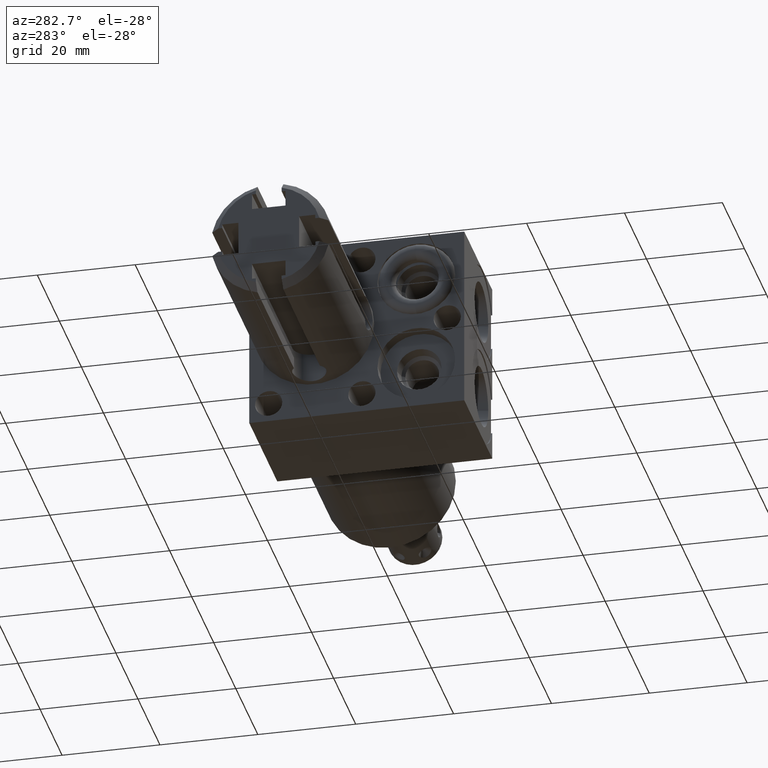
[diagram: clean part render]
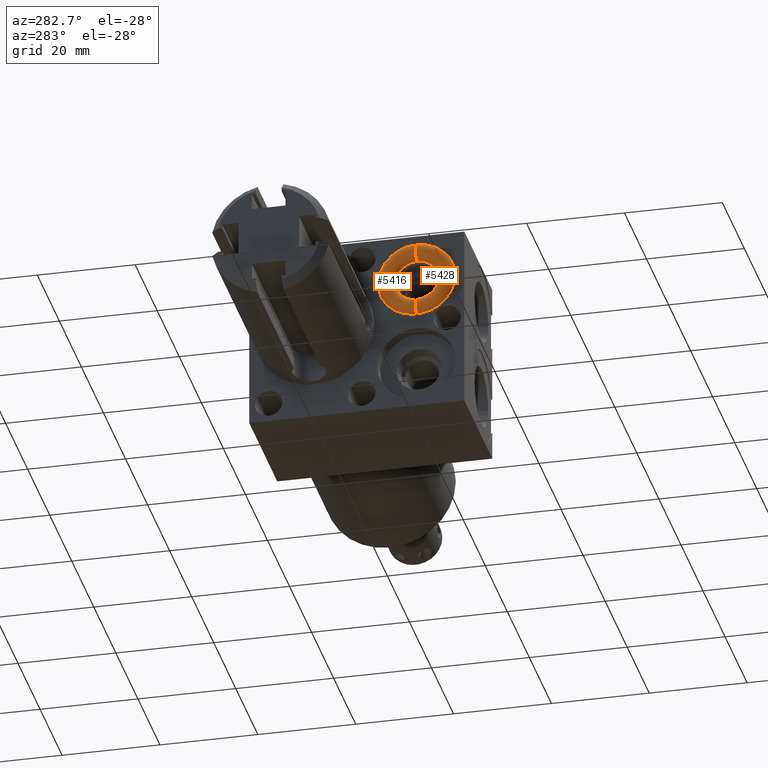
[diagram: same view with one multi-face feature highlighted, each face labeled with its STEP entity id]
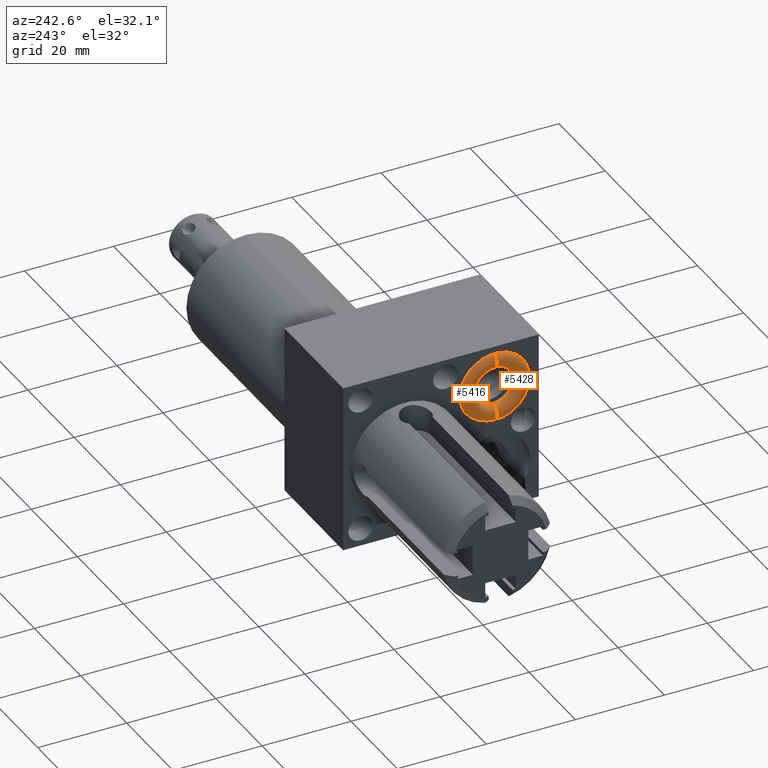
[diagram: same view with one multi-face feature highlighted, each face labeled with its STEP entity id]
A machine part, auxiliary view. The highlighted faces form ONE feature: a constant-radius fillet chain: 2 tangent blend faces with common blend radius 1.7653 mm. The faces share edges in the B-rep.
A second angle (auxiliary view) of the same feature is appended — it is thin or edge-on in the first view.
Their STEP definitions:
[1] entity #5428 (Torus):
#5287=CARTESIAN_POINT('',(-9.645E-1,-8.13E-1,3.75E-1));
#5288=DIRECTION('',(-1.E0,0.E0,0.E0));
#5289=DIRECTION('',(0.E0,0.E0,-1.E0));
#5290=AXIS2_PLACEMENT_3D('',#5287,#5288,#5289);
#5319=CARTESIAN_POINT('',(-9.645E-1,-8.13E-1,1.32E-1));
#5320=DIRECTION('',(0.E0,-1.E0,0.E0));
#5321=DIRECTION('',(0.E0,0.E0,1.E0));
#5322=AXIS2_PLACEMENT_3D('',#5319,#5320,#5321);
#5327=CARTESIAN_POINT('',(-9.645E-1,-8.13E-1,6.18E-1));
#5328=DIRECTION('',(0.E0,1.E0,0.E0));
#5329=DIRECTION('',(0.E0,0.E0,-1.E0));
#5330=AXIS2_PLACEMENT_3D('',#5327,#5328,#5329);
#5343=CARTESIAN_POINT('',(-9.645E-1,-8.13E-1,3.75E-1));
#5344=DIRECTION('',(-1.E0,0.E0,0.E0));
#5345=DIRECTION('',(0.E0,0.E0,-1.E0));
#5346=AXIS2_PLACEMENT_3D('',#5343,#5344,#5345);
#5351=CARTESIAN_POINT('',(-9.645E-1,-8.13E-1,6.25E-2));
#5352=CARTESIAN_POINT('',(-9.645E-1,-8.13E-1,2.015E-1));
#5353=VERTEX_POINT('',#5351);
#5354=VERTEX_POINT('',#5352);
#5355=CARTESIAN_POINT('',(-9.645E-1,-8.13E-1,6.875E-1));
#5356=CARTESIAN_POINT('',(-9.645E-1,-8.13E-1,5.485E-1));
#5357=VERTEX_POINT('',#5355);
#5358=VERTEX_POINT('',#5356);
#5417=CARTESIAN_POINT('',(-9.645E-1,-8.13E-1,3.75E-1));
#5418=DIRECTION('',(-1.E0,0.E0,0.E0));
#5419=DIRECTION('',(0.E0,0.E0,1.E0));
#5420=AXIS2_PLACEMENT_3D('',#5417,#5418,#5419);
#5421=TOROIDAL_SURFACE('',#5420,2.43E-1,6.95E-2);
#5422=ORIENTED_EDGE('',*,*,#5408,.F.);
#5423=ORIENTED_EDGE('',*,*,#5370,.T.);
#5424=ORIENTED_EDGE('',*,*,#5411,.T.);
#5425=ORIENTED_EDGE('',*,*,#5366,.F.);
#5426=EDGE_LOOP('',(#5422,#5423,#5424,#5425));
#5427=FACE_OUTER_BOUND('',#5426,.F.);
#5291=CIRCLE('',#5290,3.125E-1);
#5323=CIRCLE('',#5322,6.95E-2);
#5331=CIRCLE('',#5330,6.95E-2);
#5347=CIRCLE('',#5346,1.735E-1);
#5366=EDGE_CURVE('',#5353,#5357,#5291,.T.);
#5370=EDGE_CURVE('',#5354,#5358,#5347,.T.);
#5408=EDGE_CURVE('',#5354,#5353,#5323,.T.);
#5411=EDGE_CURVE('',#5358,#5357,#5331,.T.);
#5428=ADVANCED_FACE('',(#5427),#5421,.T.);
[2] entity #5416 (Torus):
#5311=CARTESIAN_POINT('',(-9.645E-1,-8.13E-1,3.75E-1));
#5312=DIRECTION('',(1.E0,0.E0,0.E0));
#5313=DIRECTION('',(0.E0,0.E0,-1.E0));
#5314=AXIS2_PLACEMENT_3D('',#5311,#5312,#5313);
#5319=CARTESIAN_POINT('',(-9.645E-1,-8.13E-1,1.32E-1));
#5320=DIRECTION('',(0.E0,-1.E0,0.E0));
#5321=DIRECTION('',(0.E0,0.E0,1.E0));
#5322=AXIS2_PLACEMENT_3D('',#5319,#5320,#5321);
#5327=CARTESIAN_POINT('',(-9.645E-1,-8.13E-1,6.18E-1));
#5328=DIRECTION('',(0.E0,1.E0,0.E0));
#5329=DIRECTION('',(0.E0,0.E0,-1.E0));
#5330=AXIS2_PLACEMENT_3D('',#5327,#5328,#5329);
#5335=CARTESIAN_POINT('',(-9.645E-1,-8.13E-1,3.75E-1));
#5336=DIRECTION('',(1.E0,0.E0,0.E0));
#5337=DIRECTION('',(0.E0,0.E0,-1.E0));
#5338=AXIS2_PLACEMENT_3D('',#5335,#5336,#5337);
#5351=CARTESIAN_POINT('',(-9.645E-1,-8.13E-1,6.25E-2));
#5352=CARTESIAN_POINT('',(-9.645E-1,-8.13E-1,2.015E-1));
#5353=VERTEX_POINT('',#5351);
#5354=VERTEX_POINT('',#5352);
#5355=CARTESIAN_POINT('',(-9.645E-1,-8.13E-1,6.875E-1));
#5356=CARTESIAN_POINT('',(-9.645E-1,-8.13E-1,5.485E-1));
#5357=VERTEX_POINT('',#5355);
#5358=VERTEX_POINT('',#5356);
#5403=CARTESIAN_POINT('',(-9.645E-1,-8.13E-1,3.75E-1));
#5404=DIRECTION('',(-1.E0,0.E0,0.E0));
#5405=DIRECTION('',(0.E0,0.E0,1.E0));
#5406=AXIS2_PLACEMENT_3D('',#5403,#5404,#5405);
#5407=TOROIDAL_SURFACE('',#5406,2.43E-1,6.95E-2);
#5409=ORIENTED_EDGE('',*,*,#5408,.T.);
#5410=ORIENTED_EDGE('',*,*,#5391,.T.);
#5412=ORIENTED_EDGE('',*,*,#5411,.F.);
#5413=ORIENTED_EDGE('',*,*,#5388,.F.);
#5414=EDGE_LOOP('',(#5409,#5410,#5412,#5413));
#5415=FACE_OUTER_BOUND('',#5414,.F.);
#5315=CIRCLE('',#5314,3.125E-1);
#5323=CIRCLE('',#5322,6.95E-2);
#5331=CIRCLE('',#5330,6.95E-2);
#5339=CIRCLE('',#5338,1.735E-1);
#5388=EDGE_CURVE('',#5354,#5358,#5339,.T.);
#5391=EDGE_CURVE('',#5353,#5357,#5315,.T.);
#5408=EDGE_CURVE('',#5354,#5353,#5323,.T.);
#5411=EDGE_CURVE('',#5358,#5357,#5331,.T.);
#5416=ADVANCED_FACE('',(#5415),#5407,.T.);